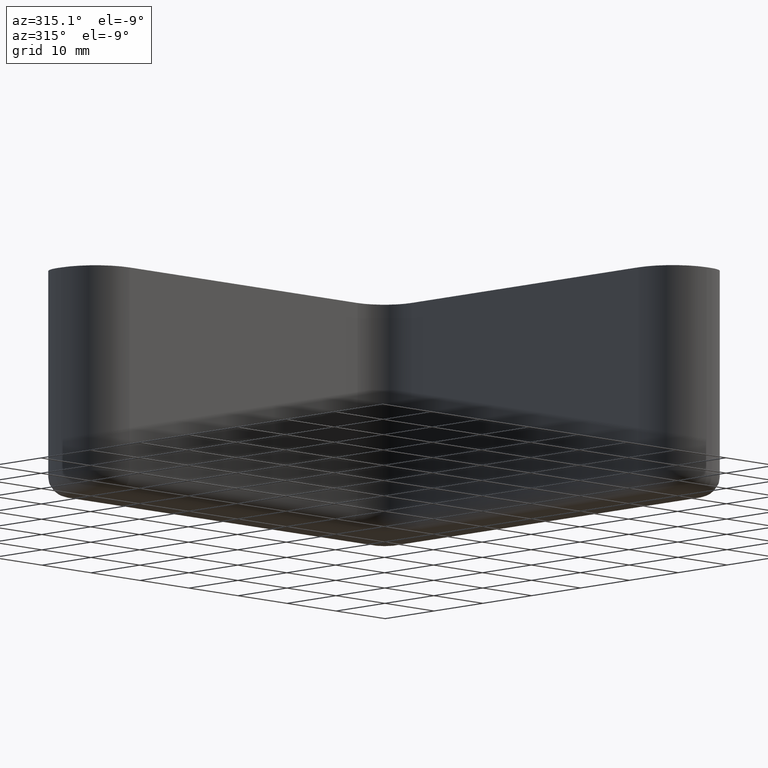
[diagram: clean part render]
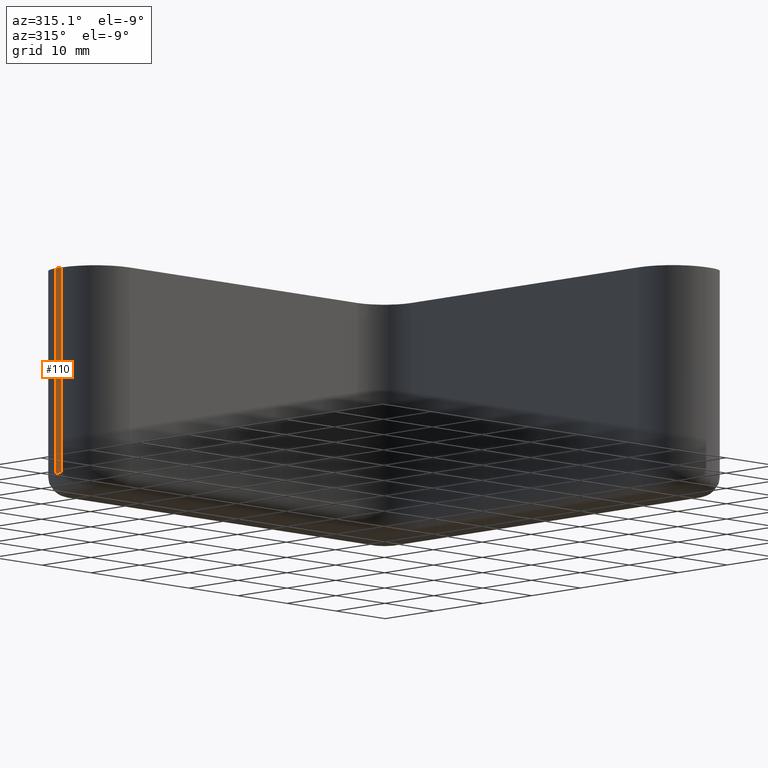
[diagram: same view with one face highlighted and labeled with its STEP entity id]
A machine part, auxiliary view. The second image highlights one B-rep face of the part: STEP entity #110.
In plain terms, the highlighted planar face has unit normal (-1, -0, 0).
Its self-contained STEP definition (entity closure, byte-faithful):
#110 = ADVANCED_FACE( '', ( #186 ), #187, .T. );
#186 = FACE_OUTER_BOUND( '', #310, .T. );
#187 = PLANE( '', #311 );
#310 = EDGE_LOOP( '', ( #590, #591, #592, #593 ) );
#311 = AXIS2_PLACEMENT_3D( '', #594, #595, #596 );
#590 = ORIENTED_EDGE( '', *, *, #621, .F. );
#591 = ORIENTED_EDGE( '', *, *, #625, .F. );
#592 = ORIENTED_EDGE( '', *, *, #637, .F. );
#593 = ORIENTED_EDGE( '', *, *, #711, .F. );
#594 = CARTESIAN_POINT( '', ( -68.0000000000000, 1.30104260698261E-015, -30.0000000000000 ) );
#595 = DIRECTION( '', ( -1.00000000000000, -3.58732406867153E-049, 3.58678896750442E-017 ) );
#596 = DIRECTION( '', ( -3.10589904968477E-033, -1.00000000000000, -8.65927457071936E-017 ) );
#621 = EDGE_CURVE( '', #719, #714, #721, .T. );
#625 = EDGE_CURVE( '', #726, #719, #728, .T. );
#637 = EDGE_CURVE( '', #748, #726, #750, .T. );
#711 = EDGE_CURVE( '', #714, #748, #867, .T. );
#714 = VERTEX_POINT( '', #870 );
#719 = VERTEX_POINT( '', #876 );
#721 = LINE( '', #878, #879 );
#726 = VERTEX_POINT( '', #885 );
#728 = LINE( '', #887, #888 );
#748 = VERTEX_POINT( '', #914 );
#750 = LINE( '', #916, #917 );
#867 = LINE( '', #1074, #1075 );
#870 = CARTESIAN_POINT( '', ( -68.0000000000000, -1.00000000000001, -30.0000000000000 ) );
#876 = CARTESIAN_POINT( '', ( -68.0000000000000, -2.00000000000000, -30.0000000000000 ) );
#878 = CARTESIAN_POINT( '', ( -68.0000000000000, -16.2500000000000, -30.0000000000000 ) );
#879 = VECTOR( '', #1087, 1000.00000000000 );
#885 = CARTESIAN_POINT( '', ( -68.0000000000000, -2.00000000000001, 0.000000000000000 ) );
#887 = CARTESIAN_POINT( '', ( -68.0000000000000, -2.00000000000000, -30.0000000000000 ) );
#888 = VECTOR( '', #1095, 1000.00000000000 );
#914 = CARTESIAN_POINT( '', ( -68.0000000000000, -1.00000000000001, 0.000000000000000 ) );
#916 = CARTESIAN_POINT( '', ( -68.0000000000000, -16.2500000000000, 0.000000000000000 ) );
#917 = VECTOR( '', #1117, 1000.00000000000 );
#1074 = CARTESIAN_POINT( '', ( -68.0000000000000, -1.00000000000001, -30.0000000000000 ) );
#1075 = VECTOR( '', #1257, 1000.00000000000 );
#1087 = DIRECTION( '', ( 0.000000000000000, 1.00000000000000, 8.65927457071936E-017 ) );
#1095 = DIRECTION( '', ( -3.58678896750442E-017, 8.65927457071936E-017, -1.00000000000000 ) );
#1117 = DIRECTION( '', ( 0.000000000000000, -1.00000000000000, -8.65927457071936E-017 ) );
#1257 = DIRECTION( '', ( 3.58678896750442E-017, -8.65927457071936E-017, 1.00000000000000 ) );